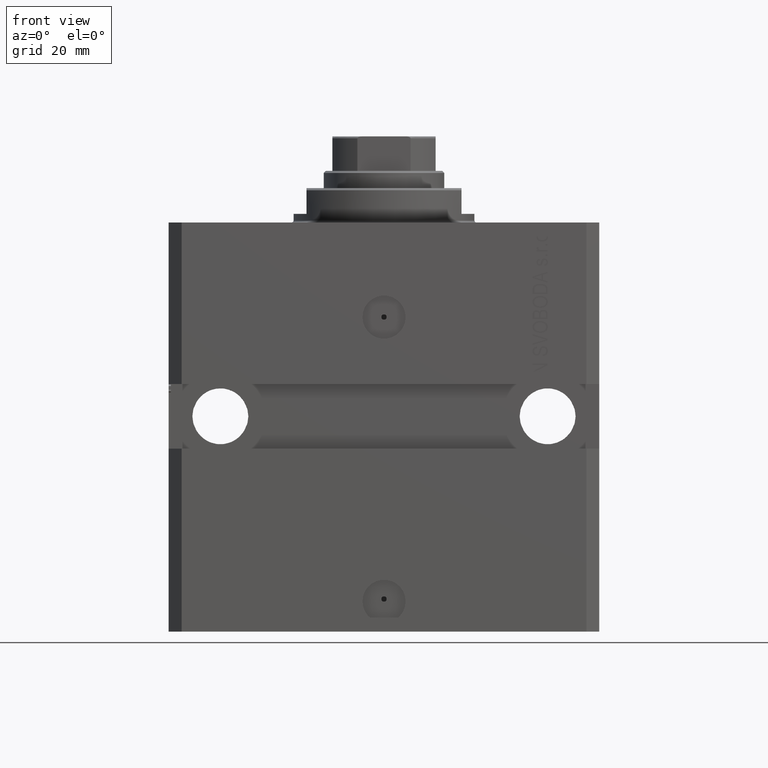
[diagram: clean part render]
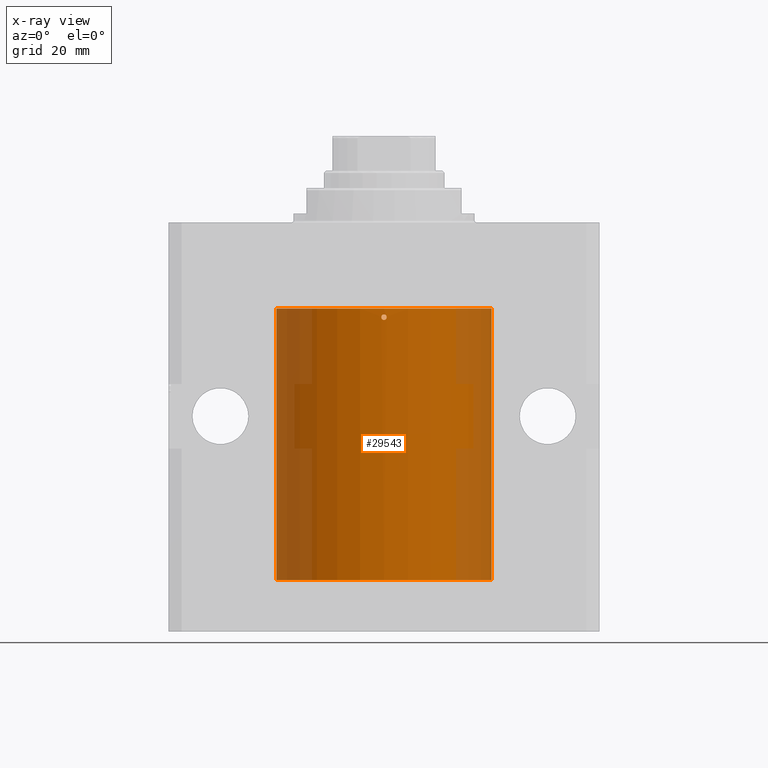
[diagram: x-ray — body ghosted, one internal face saturated and labeled with its STEP entity id]
A machine part, front view, then the same camera in x-ray: the body is ghosted and one INTERNAL B-rep face — a face not visible from any outside direction — is saturated and labeled: STEP entity #29543.
In plain terms, the highlighted cylindrical surface (partial cylindrical patch) has radius 25 mm, axis along (0, 0, 1).
Its self-contained STEP definition (entity closure, byte-faithful):
#131 = VECTOR ( 'NONE', #5751, 1000.000000000000000 ) ;
#474 = CARTESIAN_POINT ( 'NONE',  ( 25.00000000000000000, 5.649527105131028858E-17, -25.62500000000000355 ) ) ;
#1603 = VERTEX_POINT ( 'NONE', #23483 ) ;
#1964 = CARTESIAN_POINT ( 'NONE',  ( 24.99218627891525912, -0.6250000000000438538, -80.50000000000000000 ) ) ;
#2694 = VECTOR ( 'NONE', #6399, 1000.000000000000000 ) ;
#2765 = CARTESIAN_POINT ( 'NONE',  ( 24.99218627891525202, -0.6250000000000370814, -25.16478287743709075 ) ) ;
#2933 = B_SPLINE_CURVE_WITH_KNOTS ( 'NONE', 3,
 ( #1964, #15808, #8569, #36949, #43764, #29686 ),
 .UNSPECIFIED., .F., .F.,
 ( 4, 2, 4 ),
 ( 0.002931463836392422806, 0.003419622654026862815, 0.003907781471661302825 ),
 .UNSPECIFIED. ) ;
#3500 = CARTESIAN_POINT ( 'NONE',  ( -0.6250000000032718273, -24.99218627891517386, -21.99999999999966960 ) ) ;
#3879 = AXIS2_PLACEMENT_3D ( 'NONE', #35708, #4576, #4803 ) ;
#3943 = CARTESIAN_POINT ( 'NONE',  ( 0.5459809831415634029, -24.99405709131112019, -21.68496967896864192 ) ) ;
#4067 = AXIS2_PLACEMENT_3D ( 'NONE', #31611, #7085, #39101 ) ;
#4405 = CARTESIAN_POINT ( 'NONE',  ( 0.4995380721546434644, -24.99507529921185167, -21.61563396127344205 ) ) ;
#4486 = VERTEX_POINT ( 'NONE', #31128 ) ;
#4576 = DIRECTION ( 'NONE',  ( 0.000000000000000000, 0.000000000000000000, 1.000000000000000000 ) ) ;
#4754 = CARTESIAN_POINT ( 'NONE',  ( 25.00000000000000000, -0.1632166659117579854, -24.37499999999984368 ) ) ;
#4803 = DIRECTION ( 'NONE',  ( 1.000000000000000000, 0.000000000000000000, 0.000000000000000000 ) ) ;
#4980 = ORIENTED_EDGE ( 'NONE', *, *, #26873, .F. ) ;
#5296 = CARTESIAN_POINT ( 'NONE',  ( 0.6250000000000029976, -24.99218627891525202, -22.16515036919116355 ) ) ;
#5538 = CARTESIAN_POINT ( 'NONE',  ( 25.00000000000000000, 0.000000000000000000, -83.09999999999999432 ) ) ;
#5751 = DIRECTION ( 'NONE',  ( -0.000000000000000000, -0.000000000000000000, 1.000000000000000000 ) ) ;
#6223 = CARTESIAN_POINT ( 'NONE',  ( -0.6250000000032718273, -24.99218627891517386, -21.99999999999966960 ) ) ;
#6251 = CARTESIAN_POINT ( 'NONE',  ( -25.00000000000000000, 3.061616997868383043E-15, -20.00000000000000355 ) ) ;
#6399 = DIRECTION ( 'NONE',  ( -0.000000000000000000, -0.000000000000000000, 1.000000000000000000 ) ) ;
#7085 = DIRECTION ( 'NONE',  ( -0.000000000000000000, -0.000000000000000000, 1.000000000000000000 ) ) ;
#7088 = VECTOR ( 'NONE', #11192, 1000.000000000000000 ) ;
#7538 = FACE_BOUND ( 'NONE', #18339, .T. ) ;
#8482 = ORIENTED_EDGE ( 'NONE', *, *, #31845, .T. ) ;
#8569 = CARTESIAN_POINT ( 'NONE',  ( 24.99405221541606892, -0.5573590499560032718, -80.82645638849994896 ) ) ;
#8619 = CARTESIAN_POINT ( 'NONE',  ( 24.99405709967502887, -0.5571503051635591230, -24.67319989309324058 ) ) ;
#8990 = CIRCLE ( 'NONE', #3879, 25.00000000000000000 ) ;
#9164 = CARTESIAN_POINT ( 'NONE',  ( 25.00000000000000000, 0.000000000000000000, -20.00000000000000355 ) ) ;
#9605 = CARTESIAN_POINT ( 'NONE',  ( -0.3270940889136194629, -24.99812543354662608, -22.55695157226225334 ) ) ;
#10357 = CARTESIAN_POINT ( 'NONE',  ( 24.99405709967502887, -0.5571503051635591230, -80.17319989309319794 ) ) ;
#10435 = ORIENTED_EDGE ( 'NONE', *, *, #10952, .F. ) ;
#10952 = EDGE_CURVE ( 'NONE', #22640, #31870, #43911, .T. ) ;
#11192 = DIRECTION ( 'NONE',  ( -0.000000000000000000, -0.000000000000000000, 1.000000000000000000 ) ) ;
#11367 = CARTESIAN_POINT ( 'NONE',  ( 24.99813006673834792, -0.3267849812101299434, -25.55716645647036600 ) ) ;
#13035 = VERTEX_POINT ( 'NONE', #24813 ) ;
#13938 = CARTESIAN_POINT ( 'NONE',  ( 0.6250000000000028866, -24.99218627891526268, -21.91740613087400291 ) ) ;
#13980 = CARTESIAN_POINT ( 'NONE',  ( 25.00000000000000000, -0.1632166659117597896, -79.87499999999984368 ) ) ;
#14159 = CARTESIAN_POINT ( 'NONE',  ( 0.6087374094229538457, -24.99260738466560028, -21.83635983533870473 ) ) ;
#14469 = VERTEX_POINT ( 'NONE', #36538 ) ;
#14897 = CIRCLE ( 'NONE', #30881, 25.00000000000000000 ) ;
#15808 = CARTESIAN_POINT ( 'NONE',  ( 24.99218627891525202, -0.6250000000000475175, -80.66478287743706233 ) ) ;
#15951 = CARTESIAN_POINT ( 'NONE',  ( 0.5570953143439697497, -24.99405892729454237, -22.32695168018171472 ) ) ;
#16170 = ORIENTED_EDGE ( 'NONE', *, *, #40886, .T. ) ;
#16378 = CARTESIAN_POINT ( 'NONE',  ( 24.99218627891525912, -0.6250000000000371925, -25.00000000000000000 ) ) ;
#16601 = CARTESIAN_POINT ( 'NONE',  ( 24.99405221541606892, -0.5573590499559968325, -25.32645638849994540 ) ) ;
#16944 = CARTESIAN_POINT ( 'NONE',  ( 24.99218627891525912, -0.6250000000000438538, -80.50000000000000000 ) ) ;
#17240 = EDGE_CURVE ( 'NONE', #39567, #25656, #38998, .T. ) ;
#17346 = CARTESIAN_POINT ( 'NONE',  ( -0.5585560956114299369, -24.99403214699895059, -21.67461672201897827 ) ) ;
#18198 = EDGE_CURVE ( 'NONE', #43266, #31870, #8990, .T. ) ;
#18253 = CARTESIAN_POINT ( 'NONE',  ( -0.1628443292698670553, -25.00000144574358174, -21.37494217025369991 ) ) ;
#18339 = EDGE_LOOP ( 'NONE', ( #31272, #8482 ) ) ;
#20047 = B_SPLINE_CURVE_WITH_KNOTS ( 'NONE', 3,
 ( #36869, #26656, #30276, #9605, #23456, #33250, #29384, #15951, #5296, #37314 ),
 .UNSPECIFIED., .F., .F.,
 ( 4, 2, 2, 2, 4 ),
 ( 0.001954111765362379939, 0.002442529191052401905, 0.002930946616742423003, 0.003419364042432444968, 0.003907781468122466066 ),
 .UNSPECIFIED. ) ;
#20708 = B_SPLINE_CURVE_WITH_KNOTS ( 'NONE', 3,
 ( #32929, #4754, #25893, #8619, #43588, #36327 ),
 .UNSPECIFIED., .F., .F.,
 ( 4, 2, 4 ),
 ( 0.001954111766881283432, 0.002442787801636851601, 0.002931463836392420204 ),
 .UNSPECIFIED. ) ;
#20890 = VERTEX_POINT ( 'NONE', #44977 ) ;
#20986 = CARTESIAN_POINT ( 'NONE',  ( -0.3251155636494555412, -24.99815848712529132, -21.44128803502407266 ) ) ;
#21037 = VERTEX_POINT ( 'NONE', #26775 ) ;
#21353 = CARTESIAN_POINT ( 'NONE',  ( 25.00000000000000000, -0.1650629246255832239, -25.62500000000001066 ) ) ;
#22344 = DIRECTION ( 'NONE',  ( 0.000000000000000000, 0.000000000000000000, 1.000000000000000000 ) ) ;
#22596 = EDGE_CURVE ( 'NONE', #13035, #14469, #14897, .T. ) ;
#22640 = VERTEX_POINT ( 'NONE', #33703 ) ;
#23067 = EDGE_CURVE ( 'NONE', #21037, #25656, #29125, .T. ) ;
#23456 = CARTESIAN_POINT ( 'NONE',  ( -0.1653718335039358056, -24.99999654101612734, -22.62486164059664162 ) ) ;
#23483 = CARTESIAN_POINT ( 'NONE',  ( 0.6250000000000031086, -24.99218627891525912, -22.00000000000000000 ) ) ;
#23879 = LINE ( 'NONE', #44561, #2694 ) ;
#24175 = CARTESIAN_POINT ( 'NONE',  ( 0.3265116753712065112, -24.99813393277699092, -21.44266951018309086 ) ) ;
#24702 = ORIENTED_EDGE ( 'NONE', *, *, #23067, .T. ) ;
#24813 = CARTESIAN_POINT ( 'NONE',  ( -25.00000000000000000, 3.061616997868383043E-15, -83.09999999999999432 ) ) ;
#24928 = ORIENTED_EDGE ( 'NONE', *, *, #26108, .T. ) ;
#25656 = VERTEX_POINT ( 'NONE', #27724 ) ;
#25767 = CARTESIAN_POINT ( 'NONE',  ( 0.000000000000000000, 0.000000000000000000, -83.09999999999999432 ) ) ;
#25893 = CARTESIAN_POINT ( 'NONE',  ( 24.99813432839964733, -0.3264764365875519880, -24.44265997024151460 ) ) ;
#26108 = EDGE_CURVE ( 'NONE', #20890, #4486, #2933, .T. ) ;
#26519 = VERTEX_POINT ( 'NONE', #6223 ) ;
#26656 = CARTESIAN_POINT ( 'NONE',  ( -0.6250000000001371125, -24.99218627891525912, -22.16313029130749968 ) ) ;
#26775 = CARTESIAN_POINT ( 'NONE',  ( 24.99218627891525912, -0.6250000000000371925, -25.00000000000000000 ) ) ;
#26873 = EDGE_CURVE ( 'NONE', #14469, #4486, #23879, .T. ) ;
#27542 = B_SPLINE_CURVE_WITH_KNOTS ( 'NONE', 3,
 ( #42331, #13938, #14159, #3943, #4405, #24175, #31675, #18253, #20986, #17346, #41880, #3500 ),
 .UNSPECIFIED., .F., .F.,
 ( 4, 2, 2, 2, 2, 4 ),
 ( 0.000000000000000000, 0.0002442639706702973840, 0.0004885279413405947679, 0.0009770558826811897527, 0.001465583824021784954, 0.001954111765362379939 ),
 .UNSPECIFIED. ) ;
#27724 = CARTESIAN_POINT ( 'NONE',  ( 25.00000000000000000, 5.649527105131028858E-17, -25.62500000000000355 ) ) ;
#27757 = FACE_OUTER_BOUND ( 'NONE', #44758, .T. ) ;
#27940 = ORIENTED_EDGE ( 'NONE', *, *, #18198, .T. ) ;
#28469 = LINE ( 'NONE', #42304, #7088 ) ;
#29125 = B_SPLINE_CURVE_WITH_KNOTS ( 'NONE', 3,
 ( #16378, #2765, #16601, #11367, #21353, #474 ),
 .UNSPECIFIED., .F., .F.,
 ( 4, 2, 4 ),
 ( 0.002931463836392420204, 0.003419622654026856744, 0.003907781471661293284 ),
 .UNSPECIFIED. ) ;
#29384 = CARTESIAN_POINT ( 'NONE',  ( 0.3261607912900677531, -24.99813905050856278, -22.55755872216537483 ) ) ;
#29543 = ADVANCED_FACE ( 'NONE', ( #7538, #27757 ), #41592, .F. ) ;
#29686 = CARTESIAN_POINT ( 'NONE',  ( 25.00000000000000000, -2.424731304940744339E-15, -81.12500000000000000 ) ) ;
#30054 = CARTESIAN_POINT ( 'NONE',  ( 25.00000000000000000, 0.000000000000000000, -83.09999999999999432 ) ) ;
#30276 = CARTESIAN_POINT ( 'NONE',  ( -0.5574119818257227132, -24.99405044439276580, -22.32630887110948592 ) ) ;
#30672 = EDGE_CURVE ( 'NONE', #39567, #20890, #44540, .T. ) ;
#30881 = AXIS2_PLACEMENT_3D ( 'NONE', #25767, #22344, #36213 ) ;
#31128 = CARTESIAN_POINT ( 'NONE',  ( 25.00000000000000000, -2.424731304940744339E-15, -81.12500000000000000 ) ) ;
#31272 = ORIENTED_EDGE ( 'NONE', *, *, #33126, .T. ) ;
#31611 = CARTESIAN_POINT ( 'NONE',  ( 0.000000000000000000, 0.000000000000000000, -83.09999999999999432 ) ) ;
#31675 = CARTESIAN_POINT ( 'NONE',  ( 0.1632879307331824292, -24.99999855228861989, -21.37505790845920473 ) ) ;
#31845 = EDGE_CURVE ( 'NONE', #26519, #1603, #20047, .T. ) ;
#31870 = VERTEX_POINT ( 'NONE', #9164 ) ;
#32926 = ORIENTED_EDGE ( 'NONE', *, *, #39151, .T. ) ;
#32929 = CARTESIAN_POINT ( 'NONE',  ( 25.00000000000008171, 3.486950283966777142E-13, -24.37499999999673150 ) ) ;
#33126 = EDGE_CURVE ( 'NONE', #1603, #26519, #27542, .T. ) ;
#33250 = CARTESIAN_POINT ( 'NONE',  ( 0.1643243546629042096, -25.00000344801174990, -22.62513792051850103 ) ) ;
#33680 = ORIENTED_EDGE ( 'NONE', *, *, #17240, .F. ) ;
#33703 = CARTESIAN_POINT ( 'NONE',  ( 25.00000000000008171, 3.486950283966777142E-13, -24.37499999999673150 ) ) ;
#34284 = ORIENTED_EDGE ( 'NONE', *, *, #30672, .T. ) ;
#35708 = CARTESIAN_POINT ( 'NONE',  ( 0.000000000000000000, 0.000000000000000000, -20.00000000000000355 ) ) ;
#36213 = DIRECTION ( 'NONE',  ( 1.000000000000000000, 0.000000000000000000, 0.000000000000000000 ) ) ;
#36327 = CARTESIAN_POINT ( 'NONE',  ( 24.99218627891525912, -0.6250000000000371925, -25.00000000000000000 ) ) ;
#36538 = CARTESIAN_POINT ( 'NONE',  ( 25.00000000000000000, 0.000000000000000000, -83.09999999999999432 ) ) ;
#36560 = ORIENTED_EDGE ( 'NONE', *, *, #22596, .F. ) ;
#36869 = CARTESIAN_POINT ( 'NONE',  ( -0.6250000000032718273, -24.99218627891517386, -21.99999999999966960 ) ) ;
#36949 = CARTESIAN_POINT ( 'NONE',  ( 24.99813006673834792, -0.3267849812101329965, -81.05716645647035534 ) ) ;
#37314 = CARTESIAN_POINT ( 'NONE',  ( 0.6250000000000031086, -24.99218627891525912, -22.00000000000000000 ) ) ;
#38293 = CARTESIAN_POINT ( 'NONE',  ( 25.00000000000008171, 3.486950403907965962E-13, -79.87499999999673150 ) ) ;
#38766 = DIRECTION ( 'NONE',  ( -0.000000000000000000, -0.000000000000000000, 1.000000000000000000 ) ) ;
#38998 = LINE ( 'NONE', #5538, #44504 ) ;
#39101 = DIRECTION ( 'NONE',  ( 1.000000000000000000, 0.000000000000000000, 0.000000000000000000 ) ) ;
#39151 = EDGE_CURVE ( 'NONE', #22640, #21037, #20708, .T. ) ;
#39567 = VERTEX_POINT ( 'NONE', #42861 ) ;
#40886 = EDGE_CURVE ( 'NONE', #13035, #43266, #28469, .T. ) ;
#41592 = CYLINDRICAL_SURFACE ( 'NONE', #4067, 25.00000000000000000 ) ;
#41880 = CARTESIAN_POINT ( 'NONE',  ( -0.6249999999998580025, -24.99218627891526623, -21.83683279671957678 ) ) ;
#41923 = CARTESIAN_POINT ( 'NONE',  ( 24.99218627891525912, -0.6250000000000401901, -80.33504253076530688 ) ) ;
#42304 = CARTESIAN_POINT ( 'NONE',  ( -25.00000000000000000, 3.061616997868383043E-15, -83.09999999999999432 ) ) ;
#42331 = CARTESIAN_POINT ( 'NONE',  ( 0.6250000000000031086, -24.99218627891525912, -22.00000000000000000 ) ) ;
#42861 = CARTESIAN_POINT ( 'NONE',  ( 25.00000000000008171, 3.486950403907965962E-13, -79.87499999999673150 ) ) ;
#43266 = VERTEX_POINT ( 'NONE', #6251 ) ;
#43588 = CARTESIAN_POINT ( 'NONE',  ( 24.99218627891525912, -0.6250000000000373035, -24.83504253076531754 ) ) ;
#43764 = CARTESIAN_POINT ( 'NONE',  ( 25.00000000000000000, -0.1650629246255838900, -81.12500000000000000 ) ) ;
#43911 = LINE ( 'NONE', #30054, #131 ) ;
#44504 = VECTOR ( 'NONE', #38766, 1000.000000000000000 ) ;
#44540 = B_SPLINE_CURVE_WITH_KNOTS ( 'NONE', 3,
 ( #38293, #13980, #44689, #10357, #41923, #16944 ),
 .UNSPECIFIED., .F., .F.,
 ( 4, 2, 4 ),
 ( 0.001954111766881289937, 0.002442787801636856371, 0.002931463836392422806 ),
 .UNSPECIFIED. ) ;
#44561 = CARTESIAN_POINT ( 'NONE',  ( 25.00000000000000000, 0.000000000000000000, -83.09999999999999432 ) ) ;
#44689 = CARTESIAN_POINT ( 'NONE',  ( 24.99813432839964733, -0.3264764365875494345, -79.94265997024152171 ) ) ;
#44758 = EDGE_LOOP ( 'NONE', ( #36560, #16170, #27940, #10435, #32926, #24702, #33680, #34284, #24928, #4980 ) ) ;
#44977 = CARTESIAN_POINT ( 'NONE',  ( 24.99218627891525912, -0.6250000000000438538, -80.50000000000000000 ) ) ;